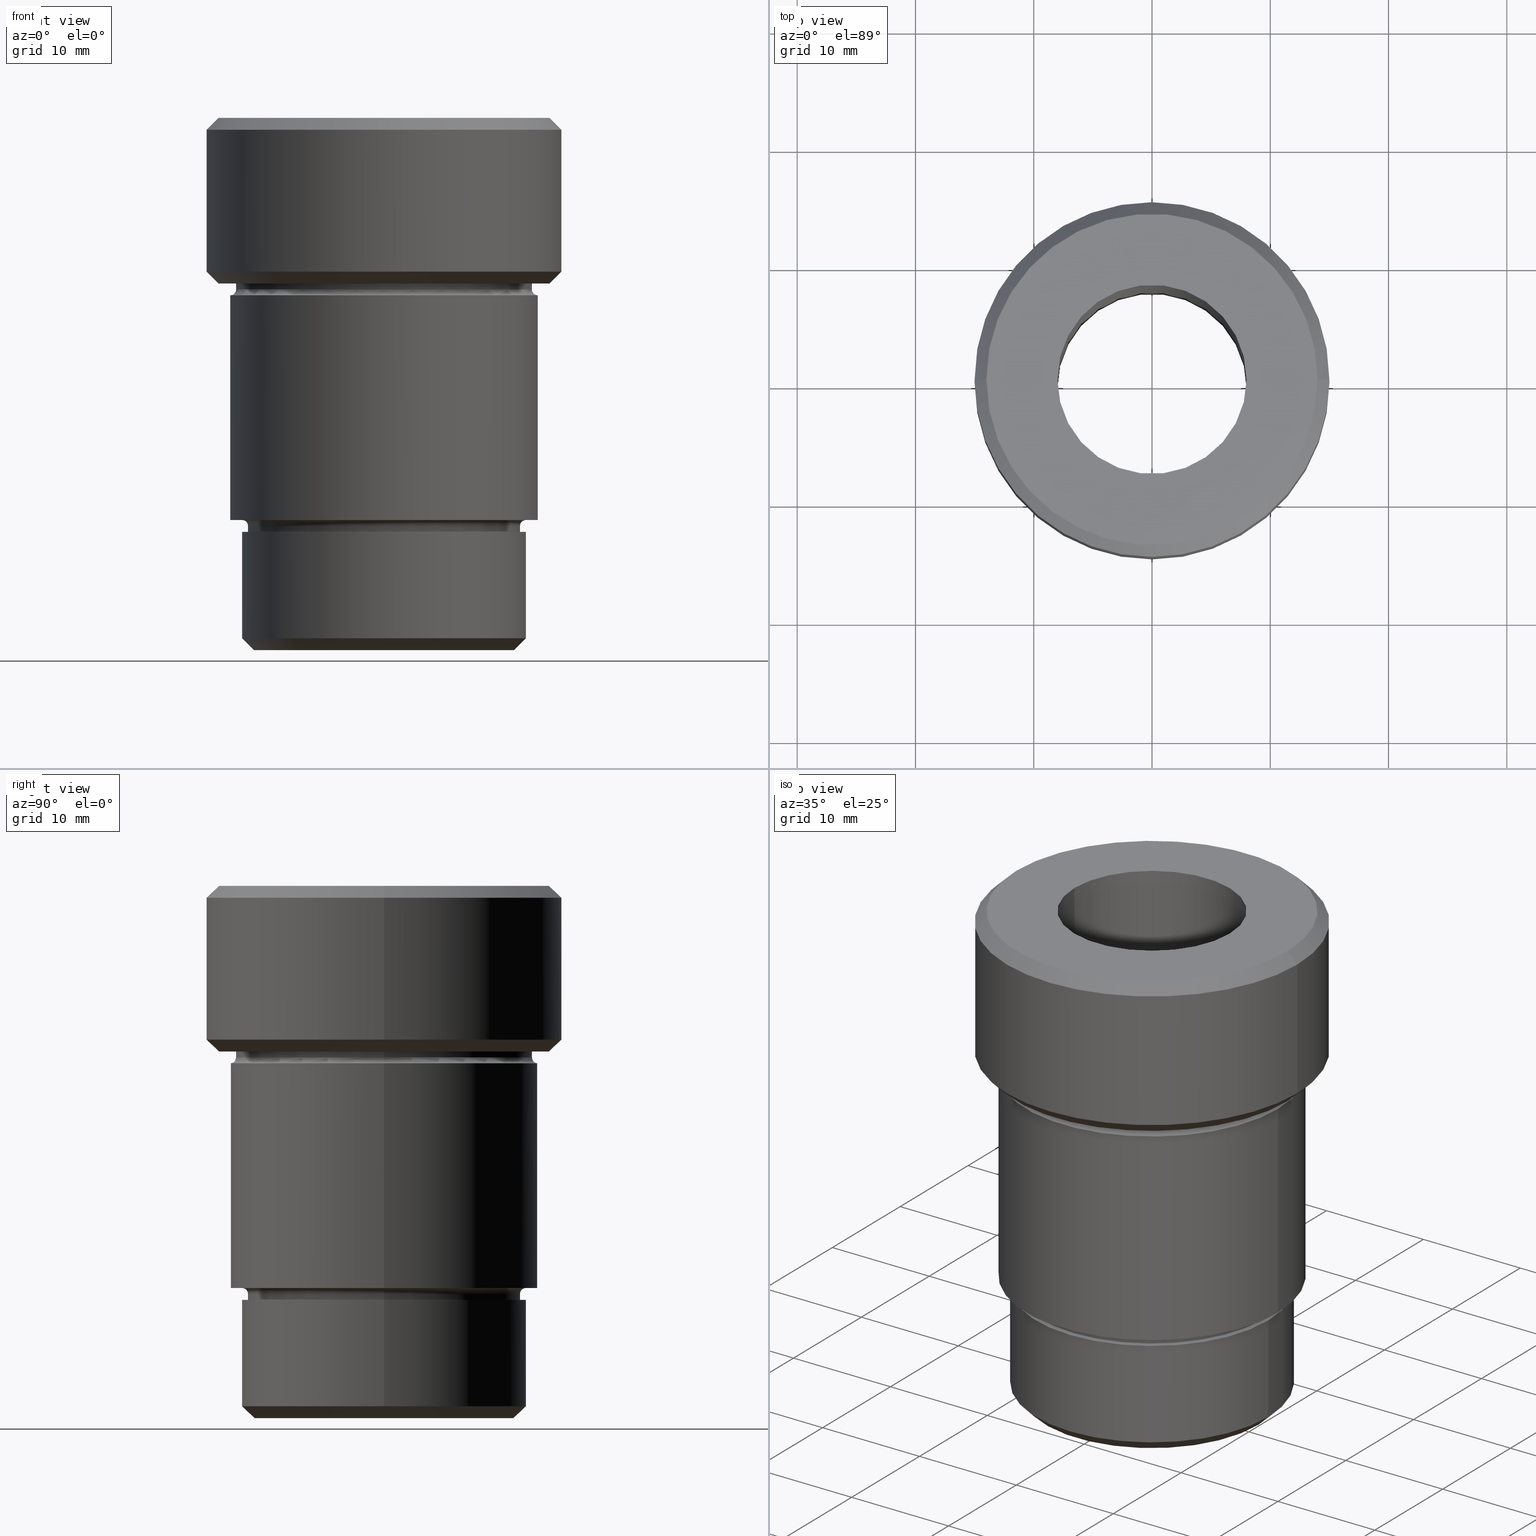
[diagram: canonical four-view strip — front | top / right | iso, engineering-drawing reading convention]
A machine part, canonical four-view strip (front | top / right | iso — engineering-drawing reading convention). The complete STEP part file that produces these views, byte-faithful:
ISO-10303-21;
HEADER;
FILE_DESCRIPTION (( 'STEP AP203' ),
    '1' );
FILE_NAME ('8956.STEP',
    '2024-01-08T12:26:33',
    ( '' ),
    ( '' ),
    'SwSTEP 2.0',
    'SolidWorks 2019',
    '' );
FILE_SCHEMA (( 'CONFIG_CONTROL_DESIGN' ));
ENDSEC;

DATA;
#1 = DATE_AND_TIME ( #189, #97 ) ;
#2 = DIRECTION ( 'NONE',  ( -0.000000000000000000, -0.000000000000000000, 1.000000000000000000 ) ) ;
#3 = LOCAL_TIME ( 13, 26, 33.00000000000000000, #551 ) ;
#4 = CARTESIAN_POINT ( 'NONE',  ( -13.99999999999999112, 0.000000000000000000, 0.000000000000000000 ) ) ;
#5 = DESIGN_CONTEXT ( 'detailed design', #616, 'design' ) ;
#6 = ORIENTED_EDGE ( 'NONE', *, *, #767, .T. ) ;
#7 = DIRECTION ( 'NONE',  ( 1.000000000000000000, 0.000000000000000000, 0.000000000000000000 ) ) ;
#8 = DIRECTION ( 'NONE',  ( 1.000000000000000000, 0.000000000000000000, 0.000000000000000000 ) ) ;
#9 = CARTESIAN_POINT ( 'NONE',  ( -13.99999999999999112, 0.000000000000000000, 0.000000000000000000 ) ) ;
#10 = CARTESIAN_POINT ( 'NONE',  ( 0.000000000000000000, 0.000000000000000000, -34.50000000000000000 ) ) ;
#11 = EDGE_CURVE ( 'NONE', #525, #555, #769, .T. ) ;
#12 = CARTESIAN_POINT ( 'NONE',  ( 0.000000000000000000, 0.000000000000000000, 0.000000000000000000 ) ) ;
#13 = VECTOR ( 'NONE', #703, 1000.000000000000000 ) ;
#14 = DIRECTION ( 'NONE',  ( 0.000000000000000000, 0.000000000000000000, -1.000000000000000000 ) ) ;
#15 = CIRCLE ( 'NONE', #45, 0.5000000000000004441 ) ;
#16 = DIRECTION ( 'NONE',  ( 1.000000000000000000, 0.000000000000000000, 0.000000000000000000 ) ) ;
#17 = VERTEX_POINT ( 'NONE', #162 ) ;
#18 = ORIENTED_EDGE ( 'NONE', *, *, #159, .T. ) ;
#19 = APPROVAL_DATE_TIME ( #434, #196 ) ;
#20 = EDGE_CURVE ( 'NONE', #369, #198, #117, .T. ) ;
#21 = EDGE_LOOP ( 'NONE', ( #688, #155 ) ) ;
#22 = CARTESIAN_POINT ( 'NONE',  ( 13.00000000000000178, 0.000000000000000000, 0.000000000000000000 ) ) ;
#23 = AXIS2_PLACEMENT_3D ( 'NONE', #493, #197, #431 ) ;
#24 = DIRECTION ( 'NONE',  ( -0.000000000000000000, -0.000000000000000000, 1.000000000000000000 ) ) ;
#25 = CC_DESIGN_APPROVAL ( #225, ( #100 ) ) ;
#26 = EDGE_CURVE ( 'NONE', #241, #17, #478, .T. ) ;
#27 = ORIENTED_EDGE ( 'NONE', *, *, #712, .T. ) ;
#28 = CARTESIAN_POINT ( 'NONE',  ( 12.50000000000000000, 0.000000000000000000, 0.000000000000000000 ) ) ;
#29 = CARTESIAN_POINT ( 'NONE',  ( 0.000000000000000000, 0.000000000000000000, 0.000000000000000000 ) ) ;
#30 = VERTEX_POINT ( 'NONE', #4 ) ;
#31 = EDGE_CURVE ( 'NONE', #637, #263, #607, .T. ) ;
#32 = CC_DESIGN_PERSON_AND_ORGANIZATION_ASSIGNMENT ( #56, #363, ( #381 ) ) ;
#33 = AXIS2_PLACEMENT_3D ( 'NONE', #644, #337, #640 ) ;
#34 = FACE_OUTER_BOUND ( 'NONE', #745, .T. ) ;
#35 = AXIS2_PLACEMENT_3D ( 'NONE', #295, #550, #465 ) ;
#36 = CIRCLE ( 'NONE', #708, 12.00000000000000355 ) ;
#37 = LINE ( 'NONE', #771, #461 ) ;
#38 = CARTESIAN_POINT ( 'NONE',  ( 0.000000000000000000, 0.000000000000000000, -34.00000000000000000 ) ) ;
#39 = CARTESIAN_POINT ( 'NONE',  ( 0.000000000000000000, 0.000000000000000000, 0.000000000000000000 ) ) ;
#40 = PERSON_AND_ORGANIZATION ( #223, #279 ) ;
#41 = EDGE_CURVE ( 'NONE', #700, #17, #590, .T. ) ;
#42 = DIRECTION ( 'NONE',  ( 0.000000000000000000, 0.000000000000000000, -1.000000000000000000 ) ) ;
#43 = CARTESIAN_POINT ( 'NONE',  ( 0.000000000000000000, 0.000000000000000000, -34.50000000000000000 ) ) ;
#44 = CC_DESIGN_PERSON_AND_ORGANIZATION_ASSIGNMENT ( #40, #773, ( #361 ) ) ;
#45 = AXIS2_PLACEMENT_3D ( 'NONE', #566, #748, #440 ) ;
#46 = AXIS2_PLACEMENT_3D ( 'NONE', #39, #467, #352 ) ;
#47 = DIRECTION ( 'NONE',  ( 0.000000000000000000, 0.000000000000000000, -1.000000000000000000 ) ) ;
#48 = DIRECTION ( 'NONE',  ( 1.000000000000000000, 0.000000000000000000, 0.000000000000000000 ) ) ;
#49 = CYLINDRICAL_SURFACE ( 'NONE', #46, 13.00000000000000178 ) ;
#50 = EDGE_CURVE ( 'NONE', #637, #119, #619, .T. ) ;
#51 = VERTEX_POINT ( 'NONE', #409 ) ;
#52 = DIRECTION ( 'NONE',  ( 1.000000000000000000, 0.000000000000000000, 0.000000000000000000 ) ) ;
#53 = CARTESIAN_POINT ( 'NONE',  ( 0.000000000000000000, 0.000000000000000000, 0.000000000000000000 ) ) ;
#54 = CARTESIAN_POINT ( 'NONE',  ( 0.000000000000000000, 0.000000000000000000, -14.00000000000000000 ) ) ;
#55 = DIRECTION ( 'NONE',  ( 1.000000000000000000, 0.000000000000000000, 0.000000000000000000 ) ) ;
#56 = PERSON_AND_ORGANIZATION ( #223, #279 ) ;
#57 = EDGE_CURVE ( 'NONE', #212, #317, #438, .T. ) ;
#58 =( LENGTH_UNIT ( ) NAMED_UNIT ( * ) SI_UNIT ( .MILLI., .METRE. ) );
#59 = VECTOR ( 'NONE', #557, 1000.000000000000000 ) ;
#60 = CARTESIAN_POINT ( 'NONE',  ( 0.000000000000000000, 0.000000000000000000, 0.000000000000000000 ) ) ;
#61 = AXIS2_PLACEMENT_3D ( 'NONE', #152, #491, #427 ) ;
#62 = CIRCLE ( 'NONE', #751, 11.50000000000000178 ) ;
#63 = CARTESIAN_POINT ( 'NONE',  ( 13.00000000000000178, 0.000000000000000000, -14.49999999999999822 ) ) ;
#64 = LINE ( 'NONE', #178, #592 ) ;
#65 = COORDINATED_UNIVERSAL_TIME_OFFSET ( 1, 0, .AHEAD. ) ;
#66 = ORIENTED_EDGE ( 'NONE', *, *, #676, .F. ) ;
#67 = ORIENTED_EDGE ( 'NONE', *, *, #221, .F. ) ;
#68 = FACE_OUTER_BOUND ( 'NONE', #259, .T. ) ;
#69 = PERSON_AND_ORGANIZATION_ROLE ( 'classification_officer' ) ;
#70 = DIRECTION ( 'NONE',  ( -1.000000000000000000, 0.000000000000000000, 0.000000000000000000 ) ) ;
#71 = ORIENTED_EDGE ( 'NONE', *, *, #572, .T. ) ;
#72 = AXIS2_PLACEMENT_3D ( 'NONE', #190, #737, #109 ) ;
#73 = AXIS2_PLACEMENT_3D ( 'NONE', #600, #415, #112 ) ;
#74 = CARTESIAN_POINT ( 'NONE',  ( 0.000000000000000000, 0.000000000000000000, -1.000000000000004441 ) ) ;
#75 = ADVANCED_FACE ( 'NONE', ( #722 ), #681, .F. ) ;
#76 = DIRECTION ( 'NONE',  ( -1.000000000000000000, 0.000000000000000000, 0.000000000000000000 ) ) ;
#77 = DIRECTION ( 'NONE',  ( -0.000000000000000000, -0.000000000000000000, 1.000000000000000000 ) ) ;
#78 = EDGE_CURVE ( 'NONE', #416, #30, #507, .T. ) ;
#79 = CARTESIAN_POINT ( 'NONE',  ( 11.50000000000000355, 0.000000000000000000, -34.50000000000000000 ) ) ;
#80 = CIRCLE ( 'NONE', #705, 13.99999999999999822 ) ;
#81 = AXIS2_PLACEMENT_3D ( 'NONE', #556, #323, #441 ) ;
#82 = APPROVAL_PERSON_ORGANIZATION ( #462, #225, #166 ) ;
#83 = CARTESIAN_POINT ( 'NONE',  ( -13.00000000000000533, 1.592040838891559687E-15, -34.00000000000000000 ) ) ;
#84 = ORIENTED_EDGE ( 'NONE', *, *, #639, .F. ) ;
#85 = FACE_OUTER_BOUND ( 'NONE', #185, .T. ) ;
#86 = DIRECTION ( 'NONE',  ( -0.000000000000000000, -0.000000000000000000, 1.000000000000000000 ) ) ;
#87 = ADVANCED_FACE ( 'NONE', ( #552 ), #184, .T. ) ;
#88 = ORIENTED_EDGE ( 'NONE', *, *, #174, .F. ) ;
#89 = ORIENTED_EDGE ( 'NONE', *, *, #50, .F. ) ;
#90 = DIRECTION ( 'NONE',  ( -1.000000000000000000, 0.000000000000000000, -0.000000000000000000 ) ) ;
#91 = EDGE_LOOP ( 'NONE', ( #305, #774 ) ) ;
#92 = FACE_BOUND ( 'NONE', #21, .T. ) ;
#93 = ORIENTED_EDGE ( 'NONE', *, *, #788, .T. ) ;
#94 = CARTESIAN_POINT ( 'NONE',  ( -13.99999999999999822, 1.775737858763662015E-15, -14.00000000000000000 ) ) ;
#95 = AXIS2_PLACEMENT_3D ( 'NONE', #12, #631, #388 ) ;
#96 = ORIENTED_EDGE ( 'NONE', *, *, #430, .T. ) ;
#97 = LOCAL_TIME ( 13, 26, 33.00000000000000000, #65 ) ;
#98 = ADVANCED_FACE ( 'NONE', ( #669 ), #689, .T. ) ;
#99 = DIRECTION ( 'NONE',  ( -0.000000000000000000, -0.000000000000000000, 1.000000000000000000 ) ) ;
#100 = PRODUCT_DEFINITION ( 'NEZN�M�', '', #381, #5 ) ;
#101 = LINE ( 'NONE', #173, #766 ) ;
#102 = CARTESIAN_POINT ( 'NONE',  ( 0.000000000000000000, 0.000000000000000000, 0.000000000000000000 ) ) ;
#103 = DIRECTION ( 'NONE',  ( -0.000000000000000000, -0.000000000000000000, 1.000000000000000000 ) ) ;
#104 = VECTOR ( 'NONE', #474, 1000.000000000000000 ) ;
#105 = CIRCLE ( 'NONE', #150, 11.50000000000000355 ) ;
#106 = DIRECTION ( 'NONE',  ( -0.7071067811865505703, 8.659560562354969836E-17, 0.7071067811865444641 ) ) ;
#107 = DATE_AND_TIME ( #657, #721 ) ;
#108 = FACE_OUTER_BOUND ( 'NONE', #541, .T. ) ;
#109 = DIRECTION ( 'NONE',  ( 1.000000000000000000, 0.000000000000000000, 0.000000000000000000 ) ) ;
#110 = DIRECTION ( 'NONE',  ( -1.000000000000000000, 0.000000000000000000, 0.000000000000000000 ) ) ;
#111 = CARTESIAN_POINT ( 'NONE',  ( 0.000000000000000000, 0.000000000000000000, -45.00000000000000000 ) ) ;
#112 = DIRECTION ( 'NONE',  ( -1.000000000000000000, 0.000000000000000000, 0.000000000000000000 ) ) ;
#113 = ORIENTED_EDGE ( 'NONE', *, *, #384, .F. ) ;
#114 = ORIENTED_EDGE ( 'NONE', *, *, #172, .T. ) ;
#115 = CARTESIAN_POINT ( 'NONE',  ( 0.000000000000000000, 0.000000000000000000, -14.00000000000000000 ) ) ;
#116 = DATE_AND_TIME ( #307, #124 ) ;
#117 = LINE ( 'NONE', #365, #191 ) ;
#118 = CARTESIAN_POINT ( 'NONE',  ( 0.000000000000000000, 0.000000000000000000, -13.00000000000001066 ) ) ;
#119 = VERTEX_POINT ( 'NONE', #534 ) ;
#120 = CIRCLE ( 'NONE', #226, 10.99999999999999645 ) ;
#121 = ORIENTED_EDGE ( 'NONE', *, *, #752, .T. ) ;
#122 = CIRCLE ( 'NONE', #632, 13.00000000000000178 ) ;
#123 = CARTESIAN_POINT ( 'NONE',  ( 14.99999999999999822, 0.000000000000000000, -13.00000000000001066 ) ) ;
#124 = LOCAL_TIME ( 13, 26, 33.00000000000000000, #200 ) ;
#125 = ADVANCED_FACE ( 'NONE', ( #784, #716 ), #570, .T. ) ;
#126 = ORIENTED_EDGE ( 'NONE', *, *, #752, .F. ) ;
#127 = DIRECTION ( 'NONE',  ( 1.000000000000000000, 0.000000000000000000, 0.000000000000000000 ) ) ;
#128 = PRODUCT_DEFINITION_SHAPE ( 'NONE', 'NONE',  #100 ) ;
#129 = EDGE_LOOP ( 'NONE', ( #613, #252, #422, #694 ) ) ;
#130 = ORIENTED_EDGE ( 'NONE', *, *, #26, .T. ) ;
#131 = APPROVAL_DATE_TIME ( #672, #624 ) ;
#132 = DIRECTION ( 'NONE',  ( -1.000000000000000000, 0.000000000000000000, 0.000000000000000000 ) ) ;
#133 = UNCERTAINTY_MEASURE_WITH_UNIT (LENGTH_MEASURE( 1.000000000000000082E-05 ), #58, 'distance_accuracy_value', 'NONE');
#134 = EDGE_CURVE ( 'NONE', #432, #198, #350, .T. ) ;
#135 = CIRCLE ( 'NONE', #579, 13.00000000000000355 ) ;
#136 = FACE_OUTER_BOUND ( 'NONE', #129, .T. ) ;
#137 = CIRCLE ( 'NONE', #242, 12.50000000000000000 ) ;
#138 =( GEOMETRIC_REPRESENTATION_CONTEXT ( 3 ) GLOBAL_UNCERTAINTY_ASSIGNED_CONTEXT ( ( #133 ) ) GLOBAL_UNIT_ASSIGNED_CONTEXT ( ( #58, #479, #180 ) ) REPRESENTATION_CONTEXT ( 'NONE', 'WORKASPACE' ) );
#139 = CARTESIAN_POINT ( 'NONE',  ( 0.000000000000000000, 11.50000000000000178, -35.00000000000000000 ) ) ;
#140 = VERTEX_POINT ( 'NONE', #582 ) ;
#141 = ADVANCED_FACE ( 'NONE', ( #168 ), #289, .T. ) ;
#142 = LINE ( 'NONE', #9, #706 ) ;
#143 = VERTEX_POINT ( 'NONE', #452 ) ;
#144 = CARTESIAN_POINT ( 'NONE',  ( -14.99999999999999822, 1.836970198721029589E-15, 0.000000000000000000 ) ) ;
#145 = ORIENTED_EDGE ( 'NONE', *, *, #608, .T. ) ;
#146 = CARTESIAN_POINT ( 'NONE',  ( 13.00000000000000178, 0.000000000000000000, -15.00000000000000000 ) ) ;
#147 = CLOSED_SHELL ( 'NONE', ( #186, #293, #346, #149, #540, #437, #517, #395, #629, #87, #322, #151, #651, #364, #453, #553, #564, #411, #516, #125, #471, #662, #141, #98, #75, #273, #724 ) ) ;
#148 = ORIENTED_EDGE ( 'NONE', *, *, #490, .F. ) ;
#149 = ADVANCED_FACE ( 'NONE', ( #85 ), #735, .T. ) ;
#150 = AXIS2_PLACEMENT_3D ( 'NONE', #43, #232, #291 ) ;
#151 = ADVANCED_FACE ( 'NONE', ( #455, #154 ), #392, .T. ) ;
#152 = CARTESIAN_POINT ( 'NONE',  ( -13.00000000000000178, 1.592040838891559293E-15, -14.49999999999999822 ) ) ;
#153 = ORIENTED_EDGE ( 'NONE', *, *, #460, .T. ) ;
#154 = FACE_OUTER_BOUND ( 'NONE', #456, .T. ) ;
#155 = ORIENTED_EDGE ( 'NONE', *, *, #768, .T. ) ;
#156 = CYLINDRICAL_SURFACE ( 'NONE', #793, 12.00000000000000000 ) ;
#157 = ORIENTED_EDGE ( 'NONE', *, *, #676, .T. ) ;
#158 = DIRECTION ( 'NONE',  ( -0.000000000000000000, -0.000000000000000000, 1.000000000000000000 ) ) ;
#159 = EDGE_CURVE ( 'NONE', #51, #781, #175, .T. ) ;
#160 = AXIS2_PLACEMENT_3D ( 'NONE', #333, #220, #695 ) ;
#161 = CIRCLE ( 'NONE', #389, 13.00000000000000355 ) ;
#162 = CARTESIAN_POINT ( 'NONE',  ( 12.00000000000000178, 0.000000000000000000, -35.00000000000000000 ) ) ;
#163 = DIRECTION ( 'NONE',  ( 0.7071067811865482389, 8.659560562354941486E-17, -0.7071067811865469066 ) ) ;
#164 = TOROIDAL_SURFACE ( 'NONE', #290, 13.00000000000000178, 0.5000000000000000000 ) ;
#165 = CIRCLE ( 'NONE', #271, 14.99999999999999822 ) ;
#166 = APPROVAL_ROLE ( '' ) ;
#167 = CYLINDRICAL_SURFACE ( 'NONE', #193, 14.99999999999999822 ) ;
#168 = FACE_OUTER_BOUND ( 'NONE', #338, .T. ) ;
#169 = CARTESIAN_POINT ( 'NONE',  ( 13.99999999999999112, 1.714505518806293455E-15, 0.000000000000000000 ) ) ;
#170 = DIRECTION ( 'NONE',  ( -0.000000000000000000, -0.000000000000000000, 1.000000000000000000 ) ) ;
#171 = COORDINATED_UNIVERSAL_TIME_OFFSET ( 1, 0, .AHEAD. ) ;
#172 = EDGE_CURVE ( 'NONE', #525, #524, #161, .T. ) ;
#173 = CARTESIAN_POINT ( 'NONE',  ( 11.50000000000000355, 0.000000000000000000, 0.000000000000000000 ) ) ;
#174 = EDGE_CURVE ( 'NONE', #524, #525, #135, .T. ) ;
#175 = CIRCLE ( 'NONE', #33, 0.5000000000000004441 ) ;
#176 = CIRCLE ( 'NONE', #720, 8.000000000000000000 ) ;
#177 = ORIENTED_EDGE ( 'NONE', *, *, #639, .T. ) ;
#178 = CARTESIAN_POINT ( 'NONE',  ( -14.99999999999999822, 1.836970198721029589E-15, -13.00000000000001066 ) ) ;
#179 = CARTESIAN_POINT ( 'NONE',  ( 0.000000000000000000, 0.000000000000000000, 0.000000000000000000 ) ) ;
#180 =( NAMED_UNIT ( * ) SI_UNIT ( $, .STERADIAN. ) SOLID_ANGLE_UNIT ( ) );
#181 = ORIENTED_EDGE ( 'NONE', *, *, #777, .F. ) ;
#182 = ORIENTED_EDGE ( 'NONE', *, *, #527, .F. ) ;
#183 = DIRECTION ( 'NONE',  ( -1.000000000000000000, 0.000000000000000000, 0.000000000000000000 ) ) ;
#184 = CYLINDRICAL_SURFACE ( 'NONE', #72, 12.50000000000000000 ) ;
#185 = EDGE_LOOP ( 'NONE', ( #617, #446, #330, #725 ) ) ;
#186 = ADVANCED_FACE ( 'NONE', ( #108 ), #492, .F. ) ;
#187 = ORIENTED_EDGE ( 'NONE', *, *, #677, .T. ) ;
#188 = CYLINDRICAL_SURFACE ( 'NONE', #318, 11.50000000000000355 ) ;
#189 = CALENDAR_DATE ( 2024, 8, 1 ) ;
#190 = CARTESIAN_POINT ( 'NONE',  ( 0.000000000000000000, 0.000000000000000000, 0.000000000000000000 ) ) ;
#191 = VECTOR ( 'NONE', #727, 1000.000000000000000 ) ;
#192 = ORIENTED_EDGE ( 'NONE', *, *, #11, .T. ) ;
#193 = AXIS2_PLACEMENT_3D ( 'NONE', #299, #407, #486 ) ;
#194 = PLANE ( 'NONE',  #81 ) ;
#195 = AXIS2_PLACEMENT_3D ( 'NONE', #281, #42, #526 ) ;
#196 = APPROVAL ( #251, 'NEUR�EN�' ) ;
#197 = DIRECTION ( 'NONE',  ( 0.000000000000000000, 0.000000000000000000, -1.000000000000000000 ) ) ;
#198 = VERTEX_POINT ( 'NONE', #488 ) ;
#199 = ORIENTED_EDGE ( 'NONE', *, *, #277, .T. ) ;
#200 = COORDINATED_UNIVERSAL_TIME_OFFSET ( 1, 0, .AHEAD. ) ;
#201 = EDGE_CURVE ( 'NONE', #605, #369, #494, .T. ) ;
#202 = ORIENTED_EDGE ( 'NONE', *, *, #20, .F. ) ;
#203 = APPROVAL_DATE_TIME ( #107, #225 ) ;
#204 = EDGE_CURVE ( 'NONE', #489, #574, #80, .T. ) ;
#205 = AXIS2_PLACEMENT_3D ( 'NONE', #267, #505, #567 ) ;
#206 = LOCAL_TIME ( 13, 26, 33.00000000000000000, #560 ) ;
#207 = FACE_OUTER_BOUND ( 'NONE', #501, .T. ) ;
#208 = ORIENTED_EDGE ( 'NONE', *, *, #387, .T. ) ;
#209 = DIRECTION ( 'NONE',  ( 1.000000000000000000, 0.000000000000000000, 0.000000000000000000 ) ) ;
#210 = EDGE_LOOP ( 'NONE', ( #620, #674 ) ) ;
#211 = EDGE_CURVE ( 'NONE', #757, #648, #120, .T. ) ;
#212 = VERTEX_POINT ( 'NONE', #266 ) ;
#213 = FACE_OUTER_BOUND ( 'NONE', #563, .T. ) ;
#214 = ORIENTED_EDGE ( 'NONE', *, *, #743, .F. ) ;
#215 = ORIENTED_EDGE ( 'NONE', *, *, #451, .F. ) ;
#216 = CARTESIAN_POINT ( 'NONE',  ( 0.000000000000000000, 0.000000000000000000, -13.00000000000001066 ) ) ;
#217 = AXIS2_PLACEMENT_3D ( 'NONE', #655, #170, #719 ) ;
#218 = VECTOR ( 'NONE', #780, 1000.000000000000000 ) ;
#219 = CARTESIAN_POINT ( 'NONE',  ( 0.000000000000000000, 0.000000000000000000, -14.00000000000000000 ) ) ;
#220 = DIRECTION ( 'NONE',  ( 0.000000000000000000, 0.000000000000000000, -1.000000000000000000 ) ) ;
#221 = EDGE_CURVE ( 'NONE', #263, #359, #385, .T. ) ;
#222 = CARTESIAN_POINT ( 'NONE',  ( 0.000000000000000000, 0.000000000000000000, -34.00000000000000000 ) ) ;
#223 = PERSON ( 'NEUR�EN�', 'NEUR�EN�', 'NEUR�EN�', ('NEUR�EN�'), ('NEUR�EN�'), ('NEUR�EN�') ) ;
#224 = CYLINDRICAL_SURFACE ( 'NONE', #658, 8.000000000000000000 ) ;
#225 = APPROVAL ( #715, 'NEUR�EN�' ) ;
#226 = AXIS2_PLACEMENT_3D ( 'NONE', #628, #326, #429 ) ;
#227 = CIRCLE ( 'NONE', #61, 0.5000000000000004441 ) ;
#228 = DIRECTION ( 'NONE',  ( -0.000000000000000000, -0.000000000000000000, 1.000000000000000000 ) ) ;
#229 = AXIS2_PLACEMENT_3D ( 'NONE', #222, #647, #645 ) ;
#230 = ORIENTED_EDGE ( 'NONE', *, *, #221, .T. ) ;
#231 = CARTESIAN_POINT ( 'NONE',  ( 0.000000000000000000, 0.000000000000000000, -45.00000000000000000 ) ) ;
#232 = DIRECTION ( 'NONE',  ( 0.000000000000000000, 0.000000000000000000, -1.000000000000000000 ) ) ;
#233 = EDGE_LOOP ( 'NONE', ( #89, #482, #230, #208 ) ) ;
#234 = CARTESIAN_POINT ( 'NONE',  ( -14.99999999999999822, 1.836970198721029589E-15, -1.000000000000004441 ) ) ;
#235 = EDGE_CURVE ( 'NONE', #143, #241, #776, .T. ) ;
#236 = FACE_OUTER_BOUND ( 'NONE', #233, .T. ) ;
#237 = EDGE_LOOP ( 'NONE', ( #88, #765 ) ) ;
#238 = CARTESIAN_POINT ( 'NONE',  ( 0.000000000000000000, 0.000000000000000000, -35.00000000000000000 ) ) ;
#239 = CARTESIAN_POINT ( 'NONE',  ( 0.000000000000000000, 0.000000000000000000, -34.00000000000000000 ) ) ;
#240 = DIRECTION ( 'NONE',  ( -0.000000000000000000, -0.000000000000000000, 1.000000000000000000 ) ) ;
#241 = VERTEX_POINT ( 'NONE', #746 ) ;
#242 = AXIS2_PLACEMENT_3D ( 'NONE', #360, #711, #602 ) ;
#243 = AXIS2_PLACEMENT_3D ( 'NONE', #398, #588, #652 ) ;
#244 = FACE_OUTER_BOUND ( 'NONE', #583, .T. ) ;
#245 = PERSON_AND_ORGANIZATION ( #223, #279 ) ;
#246 = DIRECTION ( 'NONE',  ( 0.000000000000000000, 0.000000000000000000, -1.000000000000000000 ) ) ;
#247 = DIRECTION ( 'NONE',  ( 1.000000000000000000, 0.000000000000000000, 0.000000000000000000 ) ) ;
#248 = ORIENTED_EDGE ( 'NONE', *, *, #235, .F. ) ;
#249 = EDGE_LOOP ( 'NONE', ( #678, #298, #18, #126 ) ) ;
#250 = LINE ( 'NONE', #792, #104 ) ;
#251 = APPROVAL_STATUS ( 'not_yet_approved' ) ;
#252 = ORIENTED_EDGE ( 'NONE', *, *, #685, .F. ) ;
#253 = CC_DESIGN_DATE_AND_TIME_ASSIGNMENT ( #1, #424, ( #439 ) ) ;
#254 = CARTESIAN_POINT ( 'NONE',  ( 13.99999999999999822, 0.000000000000000000, -14.00000000000000000 ) ) ;
#255 = SHAPE_DEFINITION_REPRESENTATION ( #128, #544 ) ;
#256 = DIRECTION ( 'NONE',  ( -0.000000000000000000, -0.000000000000000000, 1.000000000000000000 ) ) ;
#257 = EDGE_LOOP ( 'NONE', ( #738, #753, #303, #215 ) ) ;
#258 = AXIS2_PLACEMENT_3D ( 'NONE', #63, #309, #599 ) ;
#259 = EDGE_LOOP ( 'NONE', ( #664, #739 ) ) ;
#260 = DIRECTION ( 'NONE',  ( 1.000000000000000000, 0.000000000000000000, 0.000000000000000000 ) ) ;
#261 = CIRCLE ( 'NONE', #683, 13.99999999999999112 ) ;
#262 = DIRECTION ( 'NONE',  ( -1.000000000000000000, 0.000000000000000000, 0.000000000000000000 ) ) ;
#263 = VERTEX_POINT ( 'NONE', #680 ) ;
#264 = ORIENTED_EDGE ( 'NONE', *, *, #596, .T. ) ;
#265 = PERSON_AND_ORGANIZATION_ROLE ( 'design_supplier' ) ;
#266 = CARTESIAN_POINT ( 'NONE',  ( 12.50000000000000000, 0.000000000000000000, -14.49999999999999822 ) ) ;
#267 = CARTESIAN_POINT ( 'NONE',  ( 0.000000000000000000, 0.000000000000000000, -14.49999999999999822 ) ) ;
#268 = AXIS2_PLACEMENT_3D ( 'NONE', #661, #610, #8 ) ;
#269 = AXIS2_PLACEMENT_3D ( 'NONE', #394, #559, #515 ) ;
#270 = TOROIDAL_SURFACE ( 'NONE', #205, 13.00000000000000178, 0.5000000000000000000 ) ;
#271 = AXIS2_PLACEMENT_3D ( 'NONE', #344, #401, #464 ) ;
#272 = DIRECTION ( 'NONE',  ( -1.000000000000000000, 0.000000000000000000, 0.000000000000000000 ) ) ;
#273 = ADVANCED_FACE ( 'NONE', ( #136 ), #270, .F. ) ;
#274 = ORIENTED_EDGE ( 'NONE', *, *, #572, .F. ) ;
#275 = DIRECTION ( 'NONE',  ( -0.000000000000000000, -0.000000000000000000, 1.000000000000000000 ) ) ;
#276 = CARTESIAN_POINT ( 'NONE',  ( 0.000000000000000000, 0.000000000000000000, 0.000000000000000000 ) ) ;
#277 = EDGE_CURVE ( 'NONE', #458, #379, #15, .T. ) ;
#278 = VECTOR ( 'NONE', #275, 1000.000000000000000 ) ;
#279 = ORGANIZATION ( 'NEUR�EN�', 'NEUR�EN�', '' ) ;
#280 = ORIENTED_EDGE ( 'NONE', *, *, #320, .F. ) ;
#281 = CARTESIAN_POINT ( 'NONE',  ( 0.000000000000000000, 0.000000000000000000, -34.50000000000000000 ) ) ;
#282 = CARTESIAN_POINT ( 'NONE',  ( 0.000000000000000000, 0.000000000000000000, -14.49999999999999822 ) ) ;
#283 = DIRECTION ( 'NONE',  ( -0.000000000000000000, -0.000000000000000000, 1.000000000000000000 ) ) ;
#284 = EDGE_CURVE ( 'NONE', #524, #317, #321, .T. ) ;
#285 = CARTESIAN_POINT ( 'NONE',  ( -12.00000000000000000, 1.469576158976823947E-15, -44.00000000000000711 ) ) ;
#286 = ORIENTED_EDGE ( 'NONE', *, *, #174, .T. ) ;
#287 = PLANE ( 'NONE',  #243 ) ;
#288 = EDGE_LOOP ( 'NONE', ( #473, #371, #692, #573 ) ) ;
#289 = CONICAL_SURFACE ( 'NONE', #520, 14.99999999999999822, 0.7853981633974526089 ) ;
#290 = AXIS2_PLACEMENT_3D ( 'NONE', #282, #586, #331 ) ;
#291 = DIRECTION ( 'NONE',  ( -1.000000000000000000, 0.000000000000000000, 0.000000000000000000 ) ) ;
#292 = CC_DESIGN_APPROVAL ( #624, ( #439 ) ) ;
#293 = ADVANCED_FACE ( 'NONE', ( #449 ), #164, .F. ) ;
#294 = ORIENTED_EDGE ( 'NONE', *, *, #767, .F. ) ;
#295 = CARTESIAN_POINT ( 'NONE',  ( 0.000000000000000000, 13.00000000000000355, -34.00000000000000000 ) ) ;
#296 = APPLICATION_PROTOCOL_DEFINITION ( 'international standard', 'config_control_design', 1994, #518 ) ;
#297 = FACE_BOUND ( 'NONE', #597, .T. ) ;
#298 = ORIENTED_EDGE ( 'NONE', *, *, #677, .F. ) ;
#299 = CARTESIAN_POINT ( 'NONE',  ( 0.000000000000000000, 0.000000000000000000, 0.000000000000000000 ) ) ;
#300 = CARTESIAN_POINT ( 'NONE',  ( 0.000000000000000000, 0.000000000000000000, -15.00000000000000000 ) ) ;
#301 = DIRECTION ( 'NONE',  ( -0.000000000000000000, -0.000000000000000000, 1.000000000000000000 ) ) ;
#302 = EDGE_CURVE ( 'NONE', #143, #700, #37, .T. ) ;
#303 = ORIENTED_EDGE ( 'NONE', *, *, #506, .F. ) ;
#304 = CC_DESIGN_SECURITY_CLASSIFICATION ( #439, ( #381 ) ) ;
#305 = ORIENTED_EDGE ( 'NONE', *, *, #490, .T. ) ;
#306 = PLANE ( 'NONE',  #35 ) ;
#307 = CALENDAR_DATE ( 2024, 8, 1 ) ;
#308 = CARTESIAN_POINT ( 'NONE',  ( 0.000000000000000000, 0.000000000000000000, -45.00000000000000000 ) ) ;
#309 = DIRECTION ( 'NONE',  ( 0.000000000000000000, -1.000000000000000000, 0.000000000000000000 ) ) ;
#310 = EDGE_CURVE ( 'NONE', #621, #140, #646, .T. ) ;
#311 = EDGE_LOOP ( 'NONE', ( #375, #635, #130, #786 ) ) ;
#312 = CARTESIAN_POINT ( 'NONE',  ( 12.00000000000000355, 1.469576158976824342E-15, -34.00000000000000000 ) ) ;
#313 = CARTESIAN_POINT ( 'NONE',  ( -8.000000000000000000, 9.797174393178823685E-16, -45.00000000000000000 ) ) ;
#314 = ORIENTED_EDGE ( 'NONE', *, *, #712, .F. ) ;
#315 = DIRECTION ( 'NONE',  ( -0.7071067811865482389, 0.000000000000000000, -0.7071067811865469066 ) ) ;
#316 = PERSON_AND_ORGANIZATION ( #223, #279 ) ;
#317 = VERTEX_POINT ( 'NONE', #146 ) ;
#318 = AXIS2_PLACEMENT_3D ( 'NONE', #60, #779, #413 ) ;
#319 = AXIS2_PLACEMENT_3D ( 'NONE', #54, #367, #723 ) ;
#320 = EDGE_CURVE ( 'NONE', #317, #555, #122, .T. ) ;
#321 = LINE ( 'NONE', #22, #656 ) ;
#322 = ADVANCED_FACE ( 'NONE', ( #244 ), #614, .T. ) ;
#323 = DIRECTION ( 'NONE',  ( 0.000000000000000000, 0.000000000000000000, -1.000000000000000000 ) ) ;
#324 = AXIS2_PLACEMENT_3D ( 'NONE', #111, #673, #414 ) ;
#325 = CONICAL_SURFACE ( 'NONE', #736, 14.99999999999999822, 0.7853981633974526089 ) ;
#326 = DIRECTION ( 'NONE',  ( 0.000000000000000000, 0.000000000000000000, -1.000000000000000000 ) ) ;
#327 = CIRCLE ( 'NONE', #370, 14.99999999999999822 ) ;
#328 = DIRECTION ( 'NONE',  ( 0.000000000000000000, -0.000000000000000000, 1.000000000000000000 ) ) ;
#329 = CARTESIAN_POINT ( 'NONE',  ( 0.000000000000000000, 0.000000000000000000, 0.000000000000000000 ) ) ;
#330 = ORIENTED_EDGE ( 'NONE', *, *, #134, .F. ) ;
#331 = DIRECTION ( 'NONE',  ( 1.000000000000000000, 0.000000000000000000, 0.000000000000000000 ) ) ;
#332 = VERTEX_POINT ( 'NONE', #666 ) ;
#333 = CARTESIAN_POINT ( 'NONE',  ( 0.000000000000000000, 0.000000000000000000, 0.000000000000000000 ) ) ;
#334 = CARTESIAN_POINT ( 'NONE',  ( -13.00000000000000178, 1.592040838891559293E-15, -15.00000000000000000 ) ) ;
#335 = EDGE_LOOP ( 'NONE', ( #145, #718 ) ) ;
#336 = EDGE_CURVE ( 'NONE', #374, #332, #580, .T. ) ;
#337 = DIRECTION ( 'NONE',  ( -0.000000000000000000, -1.000000000000000000, -0.000000000000000000 ) ) ;
#338 = EDGE_LOOP ( 'NONE', ( #113, #433, #554, #558 ) ) ;
#339 = DIRECTION ( 'NONE',  ( -0.000000000000000000, -0.000000000000000000, 1.000000000000000000 ) ) ;
#340 = AXIS2_PLACEMENT_3D ( 'NONE', #179, #256, #484 ) ;
#341 = VECTOR ( 'NONE', #163, 999.9999999999998863 ) ;
#342 = FACE_OUTER_BOUND ( 'NONE', #747, .T. ) ;
#343 = ORIENTED_EDGE ( 'NONE', *, *, #430, .F. ) ;
#344 = CARTESIAN_POINT ( 'NONE',  ( 0.000000000000000000, 0.000000000000000000, -1.000000000000004441 ) ) ;
#345 = CARTESIAN_POINT ( 'NONE',  ( -12.50000000000000000, 1.530808498934191521E-15, 0.000000000000000000 ) ) ;
#346 = ADVANCED_FACE ( 'NONE', ( #423 ), #380, .F. ) ;
#347 = DIRECTION ( 'NONE',  ( -0.000000000000000000, -0.000000000000000000, 1.000000000000000000 ) ) ;
#348 = CC_DESIGN_PERSON_AND_ORGANIZATION_ASSIGNMENT ( #245, #69, ( #439 ) ) ;
#349 = CARTESIAN_POINT ( 'NONE',  ( -11.50000000000000355, 1.408343819019456570E-15, 0.000000000000000000 ) ) ;
#350 = CIRCLE ( 'NONE', #761, 14.99999999999999822 ) ;
#351 = CIRCLE ( 'NONE', #707, 12.00000000000000000 ) ;
#352 = DIRECTION ( 'NONE',  ( 1.000000000000000000, 0.000000000000000000, 0.000000000000000000 ) ) ;
#353 = AXIS2_PLACEMENT_3D ( 'NONE', #578, #535, #785 ) ;
#354 = EDGE_LOOP ( 'NONE', ( #444, #96, #187, #84 ) ) ;
#355 = CARTESIAN_POINT ( 'NONE',  ( 0.000000000000000000, 0.000000000000000000, -44.00000000000000711 ) ) ;
#356 = DIRECTION ( 'NONE',  ( -0.000000000000000000, -0.000000000000000000, 1.000000000000000000 ) ) ;
#357 = DIRECTION ( 'NONE',  ( -0.000000000000000000, -0.000000000000000000, 1.000000000000000000 ) ) ;
#358 = EDGE_CURVE ( 'NONE', #489, #369, #250, .T. ) ;
#359 = VERTEX_POINT ( 'NONE', #591 ) ;
#360 = CARTESIAN_POINT ( 'NONE',  ( 0.000000000000000000, 0.000000000000000000, -14.49999999999999822 ) ) ;
#361 = PRODUCT ( '8956', '8956', '', ( #783 ) ) ;
#362 = DIRECTION ( 'NONE',  ( 1.000000000000000000, 0.000000000000000000, 0.000000000000000000 ) ) ;
#363 = PERSON_AND_ORGANIZATION_ROLE ( 'creator' ) ;
#364 = ADVANCED_FACE ( 'NONE', ( #538 ), #167, .T. ) ;
#365 = CARTESIAN_POINT ( 'NONE',  ( 14.99999999999999822, 0.000000000000000000, 0.000000000000000000 ) ) ;
#366 = VECTOR ( 'NONE', #357, 1000.000000000000000 ) ;
#367 = DIRECTION ( 'NONE',  ( -0.000000000000000000, -0.000000000000000000, 1.000000000000000000 ) ) ;
#368 = AXIS2_PLACEMENT_3D ( 'NONE', #498, #690, #754 ) ;
#369 = VERTEX_POINT ( 'NONE', #123 ) ;
#370 = AXIS2_PLACEMENT_3D ( 'NONE', #118, #789, #611 ) ;
#371 = ORIENTED_EDGE ( 'NONE', *, *, #417, .T. ) ;
#372 = DIRECTION ( 'NONE',  ( 1.000000000000000000, 0.000000000000000000, 0.000000000000000000 ) ) ;
#373 = PERSON_AND_ORGANIZATION_ROLE ( 'creator' ) ;
#374 = VERTEX_POINT ( 'NONE', #726 ) ;
#375 = ORIENTED_EDGE ( 'NONE', *, *, #302, .F. ) ;
#376 = CYLINDRICAL_SURFACE ( 'NONE', #778, 12.50000000000000000 ) ;
#377 = EDGE_CURVE ( 'NONE', #574, #489, #521, .T. ) ;
#378 = ORIENTED_EDGE ( 'NONE', *, *, #20, .T. ) ;
#379 = VERTEX_POINT ( 'NONE', #312 ) ;
#380 = TOROIDAL_SURFACE ( 'NONE', #561, 12.00000000000000355, 0.5000000000000000000 ) ;
#381 = PRODUCT_DEFINITION_FORMATION_WITH_SPECIFIED_SOURCE ( 'LIBOVOLN�', '', #361, .NOT_KNOWN. ) ;
#382 = DIRECTION ( 'NONE',  ( 0.000000000000000000, 0.000000000000000000, -1.000000000000000000 ) ) ;
#383 = ORIENTED_EDGE ( 'NONE', *, *, #284, .T. ) ;
#384 = EDGE_CURVE ( 'NONE', #574, #605, #64, .T. ) ;
#385 = LINE ( 'NONE', #500, #667 ) ;
#386 = CARTESIAN_POINT ( 'NONE',  ( 0.000000000000000000, 0.000000000000000000, 0.000000000000000000 ) ) ;
#387 = EDGE_CURVE ( 'NONE', #359, #119, #448, .T. ) ;
#388 = DIRECTION ( 'NONE',  ( 1.000000000000000000, 0.000000000000000000, 0.000000000000000000 ) ) ;
#389 = AXIS2_PLACEMENT_3D ( 'NONE', #38, #399, #470 ) ;
#390 = CIRCLE ( 'NONE', #495, 12.50000000000000000 ) ;
#391 = CARTESIAN_POINT ( 'NONE',  ( 0.000000000000000000, 0.000000000000000000, -13.00000000000001066 ) ) ;
#392 = PLANE ( 'NONE',  #475 ) ;
#393 = ORIENTED_EDGE ( 'NONE', *, *, #57, .F. ) ;
#394 = CARTESIAN_POINT ( 'NONE',  ( 0.000000000000000000, 0.000000000000000000, -35.00000000000000000 ) ) ;
#395 = ADVANCED_FACE ( 'NONE', ( #418 ), #188, .T. ) ;
#396 = PRODUCT_RELATED_PRODUCT_CATEGORY ( 'detail', '', ( #361 ) ) ;
#397 = DIRECTION ( 'NONE',  ( 0.000000000000000000, 0.000000000000000000, -1.000000000000000000 ) ) ;
#398 = CARTESIAN_POINT ( 'NONE',  ( 0.000000000000000000, 0.000000000000000000, 0.000000000000000000 ) ) ;
#399 = DIRECTION ( 'NONE',  ( -0.000000000000000000, -0.000000000000000000, 1.000000000000000000 ) ) ;
#400 = AXIS2_PLACEMENT_3D ( 'NONE', #329, #86, #127 ) ;
#401 = DIRECTION ( 'NONE',  ( 0.000000000000000000, 0.000000000000000000, -1.000000000000000000 ) ) ;
#402 = EDGE_CURVE ( 'NONE', #263, #637, #176, .T. ) ;
#403 = DIRECTION ( 'NONE',  ( 1.000000000000000000, 0.000000000000000000, 0.000000000000000000 ) ) ;
#404 = LINE ( 'NONE', #349, #509 ) ;
#405 = CARTESIAN_POINT ( 'NONE',  ( -10.99999999999999645, 1.408343819019455979E-15, -45.00000000000000000 ) ) ;
#406 = EDGE_LOOP ( 'NONE', ( #264, #121 ) ) ;
#407 = DIRECTION ( 'NONE',  ( -0.000000000000000000, -0.000000000000000000, 1.000000000000000000 ) ) ;
#408 = VECTOR ( 'NONE', #445, 1000.000000000000000 ) ;
#409 = CARTESIAN_POINT ( 'NONE',  ( -11.50000000000000355, 1.408343819019456570E-15, -34.50000000000000000 ) ) ;
#410 = DIRECTION ( 'NONE',  ( 0.7071067811865512365, 0.000000000000000000, 0.7071067811865439090 ) ) ;
#411 = ADVANCED_FACE ( 'NONE', ( #714, #606 ), #306, .T. ) ;
#412 = EDGE_LOOP ( 'NONE', ( #514, #537, #675, #633 ) ) ;
#413 = DIRECTION ( 'NONE',  ( 1.000000000000000000, 0.000000000000000000, 0.000000000000000000 ) ) ;
#414 = DIRECTION ( 'NONE',  ( 1.000000000000000000, 0.000000000000000000, 0.000000000000000000 ) ) ;
#415 = DIRECTION ( 'NONE',  ( 0.000000000000000000, 0.000000000000000000, -1.000000000000000000 ) ) ;
#416 = VERTEX_POINT ( 'NONE', #660 ) ;
#417 = EDGE_CURVE ( 'NONE', #621, #212, #137, .T. ) ;
#418 = FACE_OUTER_BOUND ( 'NONE', #354, .T. ) ;
#419 = APPROVAL_ROLE ( '' ) ;
#420 = DIRECTION ( 'NONE',  ( -1.000000000000000000, 0.000000000000000000, 0.000000000000000000 ) ) ;
#421 = EDGE_LOOP ( 'NONE', ( #636, #548 ) ) ;
#422 = ORIENTED_EDGE ( 'NONE', *, *, #57, .T. ) ;
#423 = FACE_OUTER_BOUND ( 'NONE', #549, .T. ) ;
#424 = DATE_TIME_ROLE ( 'classification_date' ) ;
#425 = AXIS2_PLACEMENT_3D ( 'NONE', #503, #742, #132 ) ;
#426 = ORIENTED_EDGE ( 'NONE', *, *, #134, .T. ) ;
#427 = DIRECTION ( 'NONE',  ( -1.000000000000000000, 1.224646799147353454E-16, 0.000000000000000000 ) ) ;
#428 = DATE_TIME_ROLE ( 'creation_date' ) ;
#429 = DIRECTION ( 'NONE',  ( -1.000000000000000000, 0.000000000000000000, 0.000000000000000000 ) ) ;
#430 = EDGE_CURVE ( 'NONE', #374, #51, #404, .T. ) ;
#431 = DIRECTION ( 'NONE',  ( -1.000000000000000000, 0.000000000000000000, 0.000000000000000000 ) ) ;
#432 = VERTEX_POINT ( 'NONE', #234 ) ;
#433 = ORIENTED_EDGE ( 'NONE', *, *, #204, .F. ) ;
#434 = DATE_AND_TIME ( #741, #3 ) ;
#435 = DIRECTION ( 'NONE',  ( -0.000000000000000000, -0.000000000000000000, 1.000000000000000000 ) ) ;
#436 = PERSON_AND_ORGANIZATION ( #223, #279 ) ;
#437 = ADVANCED_FACE ( 'NONE', ( #468 ), #622, .T. ) ;
#438 = CIRCLE ( 'NONE', #258, 0.5000000000000004441 ) ;
#439 = SECURITY_CLASSIFICATION ( '', '', #731 ) ;
#440 = DIRECTION ( 'NONE',  ( -1.000000000000000000, -1.224646799147353454E-16, 0.000000000000000000 ) ) ;
#441 = DIRECTION ( 'NONE',  ( -1.000000000000000000, 0.000000000000000000, -0.000000000000000000 ) ) ;
#442 = ORIENTED_EDGE ( 'NONE', *, *, #211, .T. ) ;
#443 = CARTESIAN_POINT ( 'NONE',  ( 13.00000000000000355, 0.000000000000000000, -34.00000000000000000 ) ) ;
#444 = ORIENTED_EDGE ( 'NONE', *, *, #696, .T. ) ;
#445 = DIRECTION ( 'NONE',  ( -0.000000000000000000, -0.000000000000000000, 1.000000000000000000 ) ) ;
#446 = ORIENTED_EDGE ( 'NONE', *, *, #743, .T. ) ;
#447 = FACE_OUTER_BOUND ( 'NONE', #485, .T. ) ;
#448 = CIRCLE ( 'NONE', #569, 8.000000000000000000 ) ;
#449 = FACE_OUTER_BOUND ( 'NONE', #496, .T. ) ;
#450 = ORIENTED_EDGE ( 'NONE', *, *, #476, .F. ) ;
#451 = EDGE_CURVE ( 'NONE', #212, #536, #686, .T. ) ;
#452 = CARTESIAN_POINT ( 'NONE',  ( -12.00000000000000000, 1.469576158976823947E-15, -44.00000000000000711 ) ) ;
#453 = ADVANCED_FACE ( 'NONE', ( #68, #92 ), #194, .T. ) ;
#454 = DIRECTION ( 'NONE',  ( -0.000000000000000000, -0.000000000000000000, 1.000000000000000000 ) ) ;
#455 = FACE_BOUND ( 'NONE', #210, .T. ) ;
#456 = EDGE_LOOP ( 'NONE', ( #442, #530 ) ) ;
#457 = LINE ( 'NONE', #659, #528 ) ;
#458 = VERTEX_POINT ( 'NONE', #79 ) ;
#459 = CARTESIAN_POINT ( 'NONE',  ( 0.000000000000000000, 0.000000000000000000, -45.00000000000000000 ) ) ;
#460 = EDGE_CURVE ( 'NONE', #30, #432, #142, .T. ) ;
#461 = VECTOR ( 'NONE', #701, 1000.000000000000000 ) ;
#462 = PERSON_AND_ORGANIZATION ( #223, #279 ) ;
#463 = CIRCLE ( 'NONE', #693, 12.50000000000000000 ) ;
#464 = DIRECTION ( 'NONE',  ( 1.000000000000000000, 0.000000000000000000, 0.000000000000000000 ) ) ;
#465 = DIRECTION ( 'NONE',  ( -1.000000000000000000, 0.000000000000000000, -0.000000000000000000 ) ) ;
#466 = EDGE_CURVE ( 'NONE', #119, #359, #682, .T. ) ;
#467 = DIRECTION ( 'NONE',  ( -0.000000000000000000, -0.000000000000000000, 1.000000000000000000 ) ) ;
#468 = FACE_OUTER_BOUND ( 'NONE', #601, .T. ) ;
#469 = APPLICATION_PROTOCOL_DEFINITION ( 'international standard', 'config_control_design', 1994, #616 ) ;
#470 = DIRECTION ( 'NONE',  ( 1.000000000000000000, 0.000000000000000000, 0.000000000000000000 ) ) ;
#471 = ADVANCED_FACE ( 'NONE', ( #568 ), #156, .T. ) ;
#472 = CARTESIAN_POINT ( 'NONE',  ( 0.000000000000000000, 0.000000000000000000, -34.00000000000000000 ) ) ;
#473 = ORIENTED_EDGE ( 'NONE', *, *, #310, .F. ) ;
#474 = DIRECTION ( 'NONE',  ( 0.7071067811865505703, 0.000000000000000000, 0.7071067811865444641 ) ) ;
#475 = AXIS2_PLACEMENT_3D ( 'NONE', #702, #397, #90 ) ;
#476 = EDGE_CURVE ( 'NONE', #241, #143, #351, .T. ) ;
#477 = AXIS2_PLACEMENT_3D ( 'NONE', #238, #649, #55 ) ;
#478 = LINE ( 'NONE', #545, #366 ) ;
#479 =( NAMED_UNIT ( * ) PLANE_ANGLE_UNIT ( ) SI_UNIT ( $, .RADIAN. ) );
#480 = CIRCLE ( 'NONE', #73, 10.99999999999999645 ) ;
#481 = ORIENTED_EDGE ( 'NONE', *, *, #527, .T. ) ;
#482 = ORIENTED_EDGE ( 'NONE', *, *, #402, .F. ) ;
#483 = DIRECTION ( 'NONE',  ( 0.000000000000000000, 0.000000000000000000, -1.000000000000000000 ) ) ;
#484 = DIRECTION ( 'NONE',  ( 1.000000000000000000, 0.000000000000000000, 0.000000000000000000 ) ) ;
#485 = EDGE_LOOP ( 'NONE', ( #504, #508, #148, #653 ) ) ;
#486 = DIRECTION ( 'NONE',  ( 1.000000000000000000, 0.000000000000000000, 0.000000000000000000 ) ) ;
#487 = PERSON_AND_ORGANIZATION ( #223, #279 ) ;
#488 = CARTESIAN_POINT ( 'NONE',  ( 14.99999999999999822, 0.000000000000000000, -1.000000000000004441 ) ) ;
#489 = VERTEX_POINT ( 'NONE', #254 ) ;
#490 = EDGE_CURVE ( 'NONE', #17, #700, #642, .T. ) ;
#491 = DIRECTION ( 'NONE',  ( 1.224646799147353207E-16, 1.000000000000000000, 0.000000000000000000 ) ) ;
#492 = CYLINDRICAL_SURFACE ( 'NONE', #791, 8.000000000000000000 ) ;
#493 = CARTESIAN_POINT ( 'NONE',  ( 0.000000000000000000, 0.000000000000000000, 0.000000000000000000 ) ) ;
#494 = CIRCLE ( 'NONE', #749, 14.99999999999999822 ) ;
#495 = AXIS2_PLACEMENT_3D ( 'NONE', #219, #454, #758 ) ;
#496 = EDGE_LOOP ( 'NONE', ( #577, #670, #6, #393 ) ) ;
#497 = APPROVAL_PERSON_ORGANIZATION ( #436, #196, #565 ) ;
#498 = CARTESIAN_POINT ( 'NONE',  ( 0.000000000000000000, 0.000000000000000000, 0.000000000000000000 ) ) ;
#499 = APPROVAL_STATUS ( 'not_yet_approved' ) ;
#500 = CARTESIAN_POINT ( 'NONE',  ( 8.000000000000000000, 0.000000000000000000, -45.00000000000000000 ) ) ;
#501 = EDGE_LOOP ( 'NONE', ( #790, #114, #383, #294 ) ) ;
#502 = ORIENTED_EDGE ( 'NONE', *, *, #608, .F. ) ;
#503 = CARTESIAN_POINT ( 'NONE',  ( 0.000000000000000000, 0.000000000000000000, -44.00000000000000711 ) ) ;
#504 = ORIENTED_EDGE ( 'NONE', *, *, #476, .T. ) ;
#505 = DIRECTION ( 'NONE',  ( -0.000000000000000000, -0.000000000000000000, 1.000000000000000000 ) ) ;
#506 = EDGE_CURVE ( 'NONE', #536, #140, #390, .T. ) ;
#507 = CIRCLE ( 'NONE', #340, 13.99999999999999112 ) ;
#508 = ORIENTED_EDGE ( 'NONE', *, *, #302, .T. ) ;
#509 = VECTOR ( 'NONE', #782, 1000.000000000000000 ) ;
#510 = CIRCLE ( 'NONE', #319, 12.50000000000000000 ) ;
#511 = DIRECTION ( 'NONE',  ( -0.000000000000000000, -0.000000000000000000, 1.000000000000000000 ) ) ;
#512 = CYLINDRICAL_SURFACE ( 'NONE', #400, 11.50000000000000355 ) ;
#513 = ORIENTED_EDGE ( 'NONE', *, *, #284, .F. ) ;
#514 = ORIENTED_EDGE ( 'NONE', *, *, #377, .F. ) ;
#515 = DIRECTION ( 'NONE',  ( 1.000000000000000000, 0.000000000000000000, 0.000000000000000000 ) ) ;
#516 = ADVANCED_FACE ( 'NONE', ( #213 ), #512, .T. ) ;
#517 = ADVANCED_FACE ( 'NONE', ( #447 ), #618, .T. ) ;
#518 = APPLICATION_CONTEXT ( 'configuration controlled 3d designs of mechanical parts and assemblies' ) ;
#519 = DIRECTION ( 'NONE',  ( -0.000000000000000000, -0.000000000000000000, 1.000000000000000000 ) ) ;
#520 = AXIS2_PLACEMENT_3D ( 'NONE', #216, #283, #575 ) ;
#521 = CIRCLE ( 'NONE', #609, 13.99999999999999822 ) ;
#522 = EDGE_LOOP ( 'NONE', ( #182, #542, #378, #762 ) ) ;
#523 = CARTESIAN_POINT ( 'NONE',  ( 0.000000000000000000, 0.000000000000000000, -35.00000000000000000 ) ) ;
#524 = VERTEX_POINT ( 'NONE', #443 ) ;
#525 = VERTEX_POINT ( 'NONE', #83 ) ;
#526 = DIRECTION ( 'NONE',  ( -1.000000000000000000, 0.000000000000000000, 0.000000000000000000 ) ) ;
#527 = EDGE_CURVE ( 'NONE', #605, #432, #763, .T. ) ;
#528 = VECTOR ( 'NONE', #410, 1000.000000000000000 ) ;
#529 = CC_DESIGN_APPROVAL ( #196, ( #381 ) ) ;
#530 = ORIENTED_EDGE ( 'NONE', *, *, #777, .T. ) ;
#531 = CARTESIAN_POINT ( 'NONE',  ( -12.00000000000000355, 1.469576158976824342E-15, -35.00000000000000000 ) ) ;
#532 = ORIENTED_EDGE ( 'NONE', *, *, #336, .T. ) ;
#533 = DIRECTION ( 'NONE',  ( 0.000000000000000000, 0.000000000000000000, 1.000000000000000000 ) ) ;
#534 = CARTESIAN_POINT ( 'NONE',  ( -8.000000000000000000, 9.797174393178823685E-16, 0.000000000000000000 ) ) ;
#535 = DIRECTION ( 'NONE',  ( -0.000000000000000000, -0.000000000000000000, 1.000000000000000000 ) ) ;
#536 = VERTEX_POINT ( 'NONE', #571 ) ;
#537 = ORIENTED_EDGE ( 'NONE', *, *, #384, .T. ) ;
#538 = FACE_OUTER_BOUND ( 'NONE', #522, .T. ) ;
#539 = EDGE_CURVE ( 'NONE', #621, #555, #227, .T. ) ;
#540 = ADVANCED_FACE ( 'NONE', ( #684 ), #325, .T. ) ;
#541 = EDGE_LOOP ( 'NONE', ( #733, #604, #755, #67 ) ) ;
#542 = ORIENTED_EDGE ( 'NONE', *, *, #201, .T. ) ;
#543 = DIRECTION ( 'NONE',  ( -0.000000000000000000, -0.000000000000000000, 1.000000000000000000 ) ) ;
#544 = ADVANCED_BREP_SHAPE_REPRESENTATION ( '8956', ( #687, #623 ), #138 ) ;
#545 = CARTESIAN_POINT ( 'NONE',  ( 12.00000000000000000, 0.000000000000000000, 0.000000000000000000 ) ) ;
#546 = CARTESIAN_POINT ( 'NONE',  ( 10.99999999999999645, 0.000000000000000000, -45.00000000000000000 ) ) ;
#547 = APPROVAL_PERSON_ORGANIZATION ( #679, #624, #419 ) ;
#548 = ORIENTED_EDGE ( 'NONE', *, *, #336, .F. ) ;
#549 = EDGE_LOOP ( 'NONE', ( #66, #199, #589, #585 ) ) ;
#550 = DIRECTION ( 'NONE',  ( 0.000000000000000000, 0.000000000000000000, -1.000000000000000000 ) ) ;
#551 = COORDINATED_UNIVERSAL_TIME_OFFSET ( 1, 0, .AHEAD. ) ;
#552 = FACE_OUTER_BOUND ( 'NONE', #257, .T. ) ;
#553 = ADVANCED_FACE ( 'NONE', ( #671 ), #376, .T. ) ;
#554 = ORIENTED_EDGE ( 'NONE', *, *, #358, .T. ) ;
#555 = VERTEX_POINT ( 'NONE', #334 ) ;
#556 = CARTESIAN_POINT ( 'NONE',  ( 0.000000000000000000, 14.99999999999999822, -14.00000000000000000 ) ) ;
#557 = DIRECTION ( 'NONE',  ( -0.000000000000000000, -0.000000000000000000, 1.000000000000000000 ) ) ;
#558 = ORIENTED_EDGE ( 'NONE', *, *, #201, .F. ) ;
#559 = DIRECTION ( 'NONE',  ( -0.000000000000000000, -0.000000000000000000, 1.000000000000000000 ) ) ;
#560 = COORDINATED_UNIVERSAL_TIME_OFFSET ( 1, 0, .AHEAD. ) ;
#561 = AXIS2_PLACEMENT_3D ( 'NONE', #663, #483, #110 ) ;
#562 = CIRCLE ( 'NONE', #229, 12.00000000000000355 ) ;
#563 = EDGE_LOOP ( 'NONE', ( #343, #532, #177, #157 ) ) ;
#564 = ADVANCED_FACE ( 'NONE', ( #207 ), #576, .T. ) ;
#565 = APPROVAL_ROLE ( '' ) ;
#566 = CARTESIAN_POINT ( 'NONE',  ( 12.00000000000000355, 1.469576158976824342E-15, -34.50000000000000000 ) ) ;
#567 = DIRECTION ( 'NONE',  ( 1.000000000000000000, 0.000000000000000000, 0.000000000000000000 ) ) ;
#568 = FACE_OUTER_BOUND ( 'NONE', #311, .T. ) ;
#569 = AXIS2_PLACEMENT_3D ( 'NONE', #102, #301, #787 ) ;
#570 = PLANE ( 'NONE',  #630 ) ;
#571 = CARTESIAN_POINT ( 'NONE',  ( 12.50000000000000000, 0.000000000000000000, -14.00000000000000000 ) ) ;
#572 = EDGE_CURVE ( 'NONE', #757, #241, #457, .T. ) ;
#573 = ORIENTED_EDGE ( 'NONE', *, *, #768, .F. ) ;
#574 = VERTEX_POINT ( 'NONE', #94 ) ;
#575 = DIRECTION ( 'NONE',  ( 1.000000000000000000, 0.000000000000000000, 0.000000000000000000 ) ) ;
#576 = CYLINDRICAL_SURFACE ( 'NONE', #691, 13.00000000000000178 ) ;
#577 = ORIENTED_EDGE ( 'NONE', *, *, #417, .F. ) ;
#578 = CARTESIAN_POINT ( 'NONE',  ( 0.000000000000000000, 0.000000000000000000, -44.00000000000000711 ) ) ;
#579 = AXIS2_PLACEMENT_3D ( 'NONE', #239, #2, #48 ) ;
#580 = CIRCLE ( 'NONE', #477, 11.50000000000000178 ) ;
#581 = CIRCLE ( 'NONE', #195, 11.50000000000000355 ) ;
#582 = CARTESIAN_POINT ( 'NONE',  ( -12.50000000000000000, 1.530808498934191521E-15, -14.00000000000000000 ) ) ;
#583 = EDGE_LOOP ( 'NONE', ( #93, #481, #426, #202 ) ) ;
#584 = DIRECTION ( 'NONE',  ( 1.000000000000000000, 0.000000000000000000, 0.000000000000000000 ) ) ;
#585 = ORIENTED_EDGE ( 'NONE', *, *, #159, .F. ) ;
#586 = DIRECTION ( 'NONE',  ( -0.000000000000000000, -0.000000000000000000, 1.000000000000000000 ) ) ;
#587 = DIRECTION ( 'NONE',  ( 1.000000000000000000, 0.000000000000000000, 0.000000000000000000 ) ) ;
#588 = DIRECTION ( 'NONE',  ( 0.000000000000000000, -0.000000000000000000, 1.000000000000000000 ) ) ;
#589 = ORIENTED_EDGE ( 'NONE', *, *, #596, .F. ) ;
#590 = CIRCLE ( 'NONE', #268, 12.00000000000000178 ) ;
#591 = CARTESIAN_POINT ( 'NONE',  ( 8.000000000000000000, 0.000000000000000000, 0.000000000000000000 ) ) ;
#592 = VECTOR ( 'NONE', #106, 1000.000000000000000 ) ;
#593 = DIRECTION ( 'NONE',  ( 1.000000000000000000, 0.000000000000000000, 0.000000000000000000 ) ) ;
#594 = AXIS2_PLACEMENT_3D ( 'NONE', #300, #240, #247 ) ;
#595 = CARTESIAN_POINT ( 'NONE',  ( 0.000000000000000000, 0.000000000000000000, 0.000000000000000000 ) ) ;
#596 = EDGE_CURVE ( 'NONE', #781, #379, #562, .T. ) ;
#597 = EDGE_LOOP ( 'NONE', ( #665, #760 ) ) ;
#598 = DIRECTION ( 'NONE',  ( -0.000000000000000000, -0.000000000000000000, 1.000000000000000000 ) ) ;
#599 = DIRECTION ( 'NONE',  ( 0.000000000000000000, 0.000000000000000000, -1.000000000000000000 ) ) ;
#600 = CARTESIAN_POINT ( 'NONE',  ( 0.000000000000000000, 0.000000000000000000, -45.00000000000000000 ) ) ;
#601 = EDGE_LOOP ( 'NONE', ( #181, #27, #450, #274 ) ) ;
#602 = DIRECTION ( 'NONE',  ( 1.000000000000000000, 0.000000000000000000, 0.000000000000000000 ) ) ;
#603 = CARTESIAN_POINT ( 'NONE',  ( -12.00000000000000355, 0.000000000000000000, -34.00000000000000000 ) ) ;
#604 = ORIENTED_EDGE ( 'NONE', *, *, #50, .T. ) ;
#605 = VERTEX_POINT ( 'NONE', #717 ) ;
#606 = FACE_OUTER_BOUND ( 'NONE', #237, .T. ) ;
#607 = CIRCLE ( 'NONE', #324, 8.000000000000000000 ) ;
#608 = EDGE_CURVE ( 'NONE', #30, #416, #261, .T. ) ;
#609 = AXIS2_PLACEMENT_3D ( 'NONE', #115, #47, #183 ) ;
#610 = DIRECTION ( 'NONE',  ( -0.000000000000000000, -0.000000000000000000, 1.000000000000000000 ) ) ;
#611 = DIRECTION ( 'NONE',  ( -1.000000000000000000, 0.000000000000000000, 0.000000000000000000 ) ) ;
#612 = CONICAL_SURFACE ( 'NONE', #353, 12.00000000000000000, 0.7853981633974533860 ) ;
#613 = ORIENTED_EDGE ( 'NONE', *, *, #539, .F. ) ;
#614 = CYLINDRICAL_SURFACE ( 'NONE', #217, 14.99999999999999822 ) ;
#615 = CC_DESIGN_PERSON_AND_ORGANIZATION_ASSIGNMENT ( #487, #265, ( #381 ) ) ;
#616 = APPLICATION_CONTEXT ( 'configuration controlled 3d designs of mechanical parts and assemblies' ) ;
#617 = ORIENTED_EDGE ( 'NONE', *, *, #78, .F. ) ;
#618 = CYLINDRICAL_SURFACE ( 'NONE', #368, 12.00000000000000000 ) ;
#619 = LINE ( 'NONE', #313, #59 ) ;
#620 = ORIENTED_EDGE ( 'NONE', *, *, #402, .T. ) ;
#621 = VERTEX_POINT ( 'NONE', #710 ) ;
#622 = CONICAL_SURFACE ( 'NONE', #764, 12.00000000000000000, 0.7853981633974533860 ) ;
#623 = AXIS2_PLACEMENT_3D ( 'NONE', #53, #650, #593 ) ;
#624 = APPROVAL ( #499, 'NEUR�EN�' ) ;
#625 = ORIENTED_EDGE ( 'NONE', *, *, #744, .F. ) ;
#626 = CARTESIAN_POINT ( 'NONE',  ( 0.000000000000000000, 0.000000000000000000, -14.00000000000000000 ) ) ;
#627 = CARTESIAN_POINT ( 'NONE',  ( 0.000000000000000000, 0.000000000000000000, -44.00000000000000711 ) ) ;
#628 = CARTESIAN_POINT ( 'NONE',  ( 0.000000000000000000, 0.000000000000000000, -45.00000000000000000 ) ) ;
#629 = ADVANCED_FACE ( 'NONE', ( #342 ), #49, .T. ) ;
#630 = AXIS2_PLACEMENT_3D ( 'NONE', #139, #328, #16 ) ;
#631 = DIRECTION ( 'NONE',  ( -0.000000000000000000, -0.000000000000000000, 1.000000000000000000 ) ) ;
#632 = AXIS2_PLACEMENT_3D ( 'NONE', #730, #543, #372 ) ;
#633 = ORIENTED_EDGE ( 'NONE', *, *, #358, .F. ) ;
#634 = DIRECTION ( 'NONE',  ( -0.000000000000000000, -0.000000000000000000, 1.000000000000000000 ) ) ;
#635 = ORIENTED_EDGE ( 'NONE', *, *, #235, .T. ) ;
#636 = ORIENTED_EDGE ( 'NONE', *, *, #696, .F. ) ;
#637 = VERTEX_POINT ( 'NONE', #770 ) ;
#638 = DIRECTION ( 'NONE',  ( -0.000000000000000000, -0.000000000000000000, 1.000000000000000000 ) ) ;
#639 = EDGE_CURVE ( 'NONE', #332, #458, #101, .T. ) ;
#640 = DIRECTION ( 'NONE',  ( 0.000000000000000000, 0.000000000000000000, -1.000000000000000000 ) ) ;
#641 = LINE ( 'NONE', #285, #218 ) ;
#642 = CIRCLE ( 'NONE', #269, 12.00000000000000178 ) ;
#643 = CIRCLE ( 'NONE', #594, 13.00000000000000178 ) ;
#644 = CARTESIAN_POINT ( 'NONE',  ( -12.00000000000000355, 0.000000000000000000, -34.50000000000000000 ) ) ;
#645 = DIRECTION ( 'NONE',  ( -1.000000000000000000, 0.000000000000000000, 0.000000000000000000 ) ) ;
#646 = LINE ( 'NONE', #345, #408 ) ;
#647 = DIRECTION ( 'NONE',  ( -0.000000000000000000, -0.000000000000000000, 1.000000000000000000 ) ) ;
#648 = VERTEX_POINT ( 'NONE', #405 ) ;
#649 = DIRECTION ( 'NONE',  ( -0.000000000000000000, -0.000000000000000000, 1.000000000000000000 ) ) ;
#650 = DIRECTION ( 'NONE',  ( 0.000000000000000000, 0.000000000000000000, 1.000000000000000000 ) ) ;
#651 = ADVANCED_FACE ( 'NONE', ( #297, #699 ), #287, .T. ) ;
#652 = DIRECTION ( 'NONE',  ( 1.000000000000000000, 0.000000000000000000, 0.000000000000000000 ) ) ;
#653 = ORIENTED_EDGE ( 'NONE', *, *, #26, .F. ) ;
#654 = AXIS2_PLACEMENT_3D ( 'NONE', #10, #246, #70 ) ;
#655 = CARTESIAN_POINT ( 'NONE',  ( 0.000000000000000000, 0.000000000000000000, 0.000000000000000000 ) ) ;
#656 = VECTOR ( 'NONE', #511, 1000.000000000000000 ) ;
#657 = CALENDAR_DATE ( 2024, 8, 1 ) ;
#658 = AXIS2_PLACEMENT_3D ( 'NONE', #459, #228, #584 ) ;
#659 = CARTESIAN_POINT ( 'NONE',  ( 12.00000000000000000, 0.000000000000000000, -44.00000000000000711 ) ) ;
#660 = CARTESIAN_POINT ( 'NONE',  ( 13.99999999999999112, 1.775737858763661226E-15, 0.000000000000000000 ) ) ;
#661 = CARTESIAN_POINT ( 'NONE',  ( 0.000000000000000000, 0.000000000000000000, -35.00000000000000000 ) ) ;
#662 = ADVANCED_FACE ( 'NONE', ( #34 ), #612, .T. ) ;
#663 = CARTESIAN_POINT ( 'NONE',  ( 0.000000000000000000, 0.000000000000000000, -34.50000000000000000 ) ) ;
#664 = ORIENTED_EDGE ( 'NONE', *, *, #204, .T. ) ;
#665 = ORIENTED_EDGE ( 'NONE', *, *, #387, .F. ) ;
#666 = CARTESIAN_POINT ( 'NONE',  ( 11.50000000000000178, 0.000000000000000000, -35.00000000000000000 ) ) ;
#667 = VECTOR ( 'NONE', #435, 1000.000000000000000 ) ;
#668 = CALENDAR_DATE ( 2024, 8, 1 ) ;
#669 = FACE_OUTER_BOUND ( 'NONE', #759, .T. ) ;
#670 = ORIENTED_EDGE ( 'NONE', *, *, #539, .T. ) ;
#671 = FACE_OUTER_BOUND ( 'NONE', #288, .T. ) ;
#672 = DATE_AND_TIME ( #668, #206 ) ;
#673 = DIRECTION ( 'NONE',  ( 0.000000000000000000, 0.000000000000000000, 1.000000000000000000 ) ) ;
#674 = ORIENTED_EDGE ( 'NONE', *, *, #31, .T. ) ;
#675 = ORIENTED_EDGE ( 'NONE', *, *, #788, .F. ) ;
#676 = EDGE_CURVE ( 'NONE', #458, #51, #105, .T. ) ;
#677 = EDGE_CURVE ( 'NONE', #51, #458, #581, .T. ) ;
#678 = ORIENTED_EDGE ( 'NONE', *, *, #277, .F. ) ;
#679 = PERSON_AND_ORGANIZATION ( #223, #279 ) ;
#680 = CARTESIAN_POINT ( 'NONE',  ( 8.000000000000000000, 0.000000000000000000, -45.00000000000000000 ) ) ;
#681 = TOROIDAL_SURFACE ( 'NONE', #654, 12.00000000000000355, 0.5000000000000000000 ) ;
#682 = CIRCLE ( 'NONE', #95, 8.000000000000000000 ) ;
#683 = AXIS2_PLACEMENT_3D ( 'NONE', #595, #339, #587 ) ;
#684 = FACE_OUTER_BOUND ( 'NONE', #412, .T. ) ;
#685 = EDGE_CURVE ( 'NONE', #212, #621, #463, .T. ) ;
#686 = LINE ( 'NONE', #28, #278 ) ;
#687 = MANIFOLD_SOLID_BREP ( 'Odebrat vysunut�m1', #147 ) ;
#688 = ORIENTED_EDGE ( 'NONE', *, *, #506, .T. ) ;
#689 = CONICAL_SURFACE ( 'NONE', #23, 13.99999999999999112, 0.7853981633974491672 ) ;
#690 = DIRECTION ( 'NONE',  ( -0.000000000000000000, -0.000000000000000000, 1.000000000000000000 ) ) ;
#691 = AXIS2_PLACEMENT_3D ( 'NONE', #29, #519, #403 ) ;
#692 = ORIENTED_EDGE ( 'NONE', *, *, #451, .T. ) ;
#693 = AXIS2_PLACEMENT_3D ( 'NONE', #713, #347, #775 ) ;
#694 = ORIENTED_EDGE ( 'NONE', *, *, #320, .T. ) ;
#695 = DIRECTION ( 'NONE',  ( -1.000000000000000000, 0.000000000000000000, 0.000000000000000000 ) ) ;
#696 = EDGE_CURVE ( 'NONE', #332, #374, #62, .T. ) ;
#697 = DIRECTION ( 'NONE',  ( 1.000000000000000000, 0.000000000000000000, 0.000000000000000000 ) ) ;
#698 = CARTESIAN_POINT ( 'NONE',  ( -13.00000000000000178, 1.592040838891559293E-15, 0.000000000000000000 ) ) ;
#699 = FACE_OUTER_BOUND ( 'NONE', #335, .T. ) ;
#700 = VERTEX_POINT ( 'NONE', #531 ) ;
#701 = DIRECTION ( 'NONE',  ( -0.000000000000000000, -0.000000000000000000, 1.000000000000000000 ) ) ;
#702 = CARTESIAN_POINT ( 'NONE',  ( 0.000000000000000000, 12.00000000000000000, -45.00000000000000000 ) ) ;
#703 = DIRECTION ( 'NONE',  ( -0.000000000000000000, -0.000000000000000000, 1.000000000000000000 ) ) ;
#704 = LINE ( 'NONE', #169, #341 ) ;
#705 = AXIS2_PLACEMENT_3D ( 'NONE', #626, #14, #262 ) ;
#706 = VECTOR ( 'NONE', #315, 999.9999999999998863 ) ;
#707 = AXIS2_PLACEMENT_3D ( 'NONE', #627, #24, #272 ) ;
#708 = AXIS2_PLACEMENT_3D ( 'NONE', #472, #103, #420 ) ;
#709 = DIRECTION ( 'NONE',  ( 1.000000000000000000, 0.000000000000000000, 0.000000000000000000 ) ) ;
#710 = CARTESIAN_POINT ( 'NONE',  ( -12.50000000000000000, 1.530808498934191521E-15, -14.49999999999999822 ) ) ;
#711 = DIRECTION ( 'NONE',  ( -0.000000000000000000, -0.000000000000000000, 1.000000000000000000 ) ) ;
#712 = EDGE_CURVE ( 'NONE', #648, #143, #641, .T. ) ;
#713 = CARTESIAN_POINT ( 'NONE',  ( 0.000000000000000000, 0.000000000000000000, -14.49999999999999822 ) ) ;
#714 = FACE_BOUND ( 'NONE', #406, .T. ) ;
#715 = APPROVAL_STATUS ( 'not_yet_approved' ) ;
#716 = FACE_BOUND ( 'NONE', #421, .T. ) ;
#717 = CARTESIAN_POINT ( 'NONE',  ( -14.99999999999999822, 1.836970198721029589E-15, -13.00000000000001066 ) ) ;
#718 = ORIENTED_EDGE ( 'NONE', *, *, #78, .T. ) ;
#719 = DIRECTION ( 'NONE',  ( 1.000000000000000000, 0.000000000000000000, 0.000000000000000000 ) ) ;
#720 = AXIS2_PLACEMENT_3D ( 'NONE', #231, #533, #362 ) ;
#721 = LOCAL_TIME ( 13, 26, 33.00000000000000000, #171 ) ;
#722 = FACE_OUTER_BOUND ( 'NONE', #249, .T. ) ;
#723 = DIRECTION ( 'NONE',  ( 1.000000000000000000, 0.000000000000000000, 0.000000000000000000 ) ) ;
#724 = ADVANCED_FACE ( 'NONE', ( #236 ), #224, .F. ) ;
#725 = ORIENTED_EDGE ( 'NONE', *, *, #460, .F. ) ;
#726 = CARTESIAN_POINT ( 'NONE',  ( -11.50000000000000178, 1.408343819019456373E-15, -35.00000000000000000 ) ) ;
#727 = DIRECTION ( 'NONE',  ( -0.000000000000000000, -0.000000000000000000, 1.000000000000000000 ) ) ;
#728 = ORIENTED_EDGE ( 'NONE', *, *, #211, .F. ) ;
#729 = CC_DESIGN_PERSON_AND_ORGANIZATION_ASSIGNMENT ( #316, #373, ( #100 ) ) ;
#730 = CARTESIAN_POINT ( 'NONE',  ( 0.000000000000000000, 0.000000000000000000, -15.00000000000000000 ) ) ;
#731 = SECURITY_CLASSIFICATION_LEVEL ( 'unclassified' ) ;
#732 = CARTESIAN_POINT ( 'NONE',  ( 0.000000000000000000, 0.000000000000000000, -13.00000000000001066 ) ) ;
#733 = ORIENTED_EDGE ( 'NONE', *, *, #31, .F. ) ;
#734 = DIRECTION ( 'NONE',  ( -0.000000000000000000, -0.000000000000000000, 1.000000000000000000 ) ) ;
#735 = CONICAL_SURFACE ( 'NONE', #160, 13.99999999999999112, 0.7853981633974491672 ) ;
#736 = AXIS2_PLACEMENT_3D ( 'NONE', #391, #634, #260 ) ;
#737 = DIRECTION ( 'NONE',  ( -0.000000000000000000, -0.000000000000000000, 1.000000000000000000 ) ) ;
#738 = ORIENTED_EDGE ( 'NONE', *, *, #685, .T. ) ;
#739 = ORIENTED_EDGE ( 'NONE', *, *, #377, .T. ) ;
#740 = DIRECTION ( 'NONE',  ( -0.000000000000000000, -0.000000000000000000, 1.000000000000000000 ) ) ;
#741 = CALENDAR_DATE ( 2024, 8, 1 ) ;
#742 = DIRECTION ( 'NONE',  ( -0.000000000000000000, -0.000000000000000000, 1.000000000000000000 ) ) ;
#743 = EDGE_CURVE ( 'NONE', #416, #198, #704, .T. ) ;
#744 = EDGE_CURVE ( 'NONE', #198, #432, #165, .T. ) ;
#745 = EDGE_LOOP ( 'NONE', ( #314, #728, #71, #248 ) ) ;
#746 = CARTESIAN_POINT ( 'NONE',  ( 12.00000000000000000, 0.000000000000000000, -44.00000000000000711 ) ) ;
#747 = EDGE_LOOP ( 'NONE', ( #286, #192, #280, #513 ) ) ;
#748 = DIRECTION ( 'NONE',  ( -1.224646799147353207E-16, 1.000000000000000000, 0.000000000000000000 ) ) ;
#749 = AXIS2_PLACEMENT_3D ( 'NONE', #732, #77, #76 ) ;
#750 = VECTOR ( 'NONE', #638, 1000.000000000000000 ) ;
#751 = AXIS2_PLACEMENT_3D ( 'NONE', #523, #99, #772 ) ;
#752 = EDGE_CURVE ( 'NONE', #379, #781, #36, .T. ) ;
#753 = ORIENTED_EDGE ( 'NONE', *, *, #310, .T. ) ;
#754 = DIRECTION ( 'NONE',  ( 1.000000000000000000, 0.000000000000000000, 0.000000000000000000 ) ) ;
#755 = ORIENTED_EDGE ( 'NONE', *, *, #466, .T. ) ;
#756 = CC_DESIGN_DATE_AND_TIME_ASSIGNMENT ( #116, #428, ( #100 ) ) ;
#757 = VERTEX_POINT ( 'NONE', #546 ) ;
#758 = DIRECTION ( 'NONE',  ( 1.000000000000000000, 0.000000000000000000, 0.000000000000000000 ) ) ;
#759 = EDGE_LOOP ( 'NONE', ( #214, #502, #153, #625 ) ) ;
#760 = ORIENTED_EDGE ( 'NONE', *, *, #466, .F. ) ;
#761 = AXIS2_PLACEMENT_3D ( 'NONE', #74, #382, #709 ) ;
#762 = ORIENTED_EDGE ( 'NONE', *, *, #744, .T. ) ;
#763 = LINE ( 'NONE', #144, #750 ) ;
#764 = AXIS2_PLACEMENT_3D ( 'NONE', #355, #598, #52 ) ;
#765 = ORIENTED_EDGE ( 'NONE', *, *, #172, .F. ) ;
#766 = VECTOR ( 'NONE', #158, 1000.000000000000000 ) ;
#767 = EDGE_CURVE ( 'NONE', #555, #317, #643, .T. ) ;
#768 = EDGE_CURVE ( 'NONE', #140, #536, #510, .T. ) ;
#769 = LINE ( 'NONE', #698, #13 ) ;
#770 = CARTESIAN_POINT ( 'NONE',  ( -8.000000000000000000, 9.797174393178823685E-16, -45.00000000000000000 ) ) ;
#771 = CARTESIAN_POINT ( 'NONE',  ( -12.00000000000000000, 1.469576158976823947E-15, 0.000000000000000000 ) ) ;
#772 = DIRECTION ( 'NONE',  ( 1.000000000000000000, 0.000000000000000000, 0.000000000000000000 ) ) ;
#773 = PERSON_AND_ORGANIZATION_ROLE ( 'design_owner' ) ;
#774 = ORIENTED_EDGE ( 'NONE', *, *, #41, .T. ) ;
#775 = DIRECTION ( 'NONE',  ( 1.000000000000000000, 0.000000000000000000, 0.000000000000000000 ) ) ;
#776 = CIRCLE ( 'NONE', #425, 12.00000000000000000 ) ;
#777 = EDGE_CURVE ( 'NONE', #648, #757, #480, .T. ) ;
#778 = AXIS2_PLACEMENT_3D ( 'NONE', #276, #740, #697 ) ;
#779 = DIRECTION ( 'NONE',  ( -0.000000000000000000, -0.000000000000000000, 1.000000000000000000 ) ) ;
#780 = DIRECTION ( 'NONE',  ( -0.7071067811865512365, 8.659560562354978464E-17, 0.7071067811865439090 ) ) ;
#781 = VERTEX_POINT ( 'NONE', #603 ) ;
#782 = DIRECTION ( 'NONE',  ( -0.000000000000000000, -0.000000000000000000, 1.000000000000000000 ) ) ;
#783 = MECHANICAL_CONTEXT ( 'NONE', #518, 'mechanical' ) ;
#784 = FACE_OUTER_BOUND ( 'NONE', #91, .T. ) ;
#785 = DIRECTION ( 'NONE',  ( 1.000000000000000000, 0.000000000000000000, 0.000000000000000000 ) ) ;
#786 = ORIENTED_EDGE ( 'NONE', *, *, #41, .F. ) ;
#787 = DIRECTION ( 'NONE',  ( 1.000000000000000000, 0.000000000000000000, 0.000000000000000000 ) ) ;
#788 = EDGE_CURVE ( 'NONE', #369, #605, #327, .T. ) ;
#789 = DIRECTION ( 'NONE',  ( -0.000000000000000000, -0.000000000000000000, 1.000000000000000000 ) ) ;
#790 = ORIENTED_EDGE ( 'NONE', *, *, #11, .F. ) ;
#791 = AXIS2_PLACEMENT_3D ( 'NONE', #308, #356, #7 ) ;
#792 = CARTESIAN_POINT ( 'NONE',  ( 14.99999999999999822, 0.000000000000000000, -13.00000000000001066 ) ) ;
#793 = AXIS2_PLACEMENT_3D ( 'NONE', #386, #734, #209 ) ;
ENDSEC;
END-ISO-10303-21;
